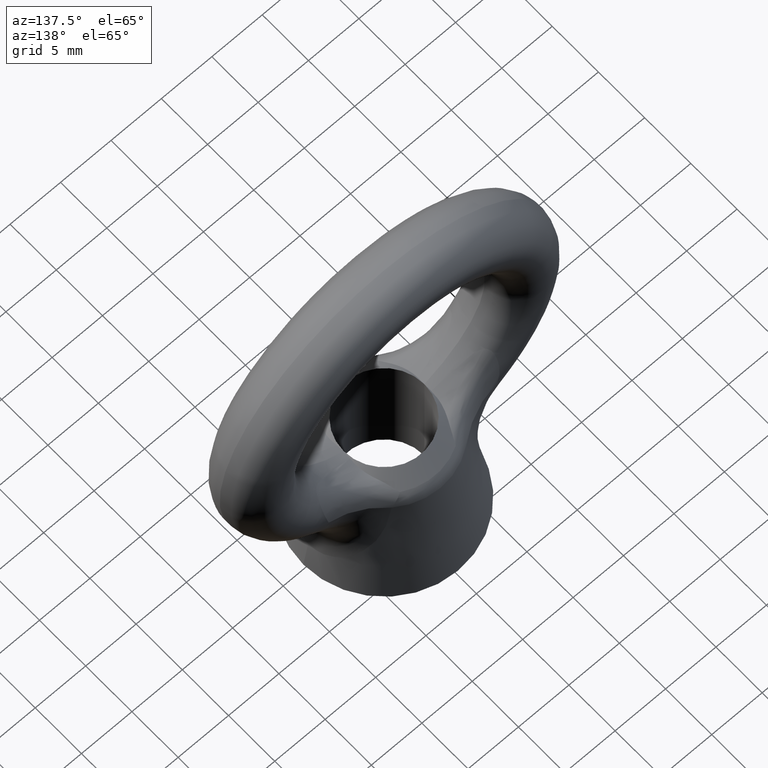
[diagram: clean part render]
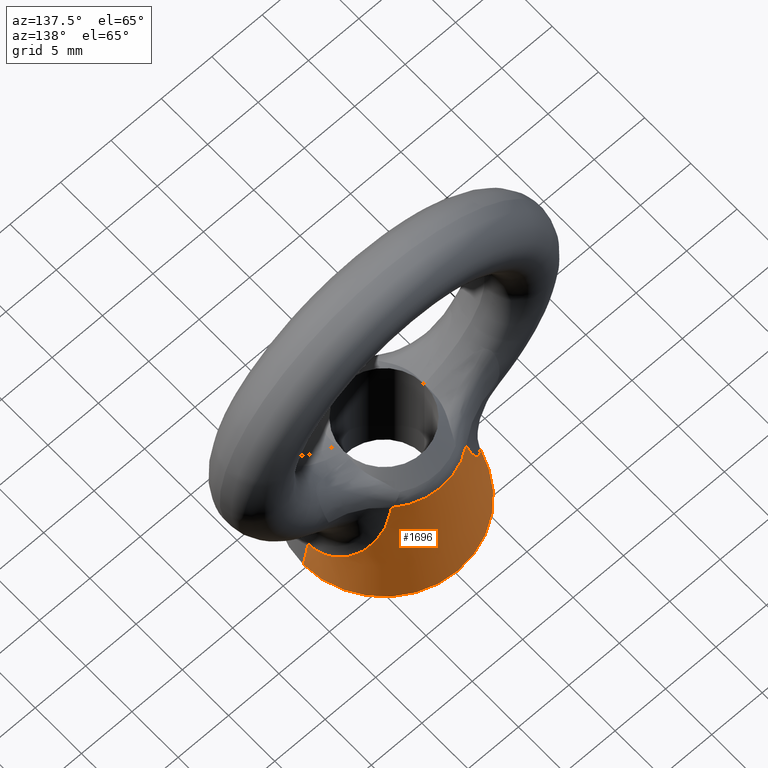
[diagram: same view with one face highlighted and labeled with its STEP entity id]
A machine part, auxiliary view. The second image highlights one B-rep face of the part: STEP entity #1696.
In plain terms, the highlighted conical surface has half-angle 9.462 deg.
Its self-contained STEP definition (entity closure, byte-faithful):
#19 = CARTESIAN_POINT ( 'NONE',  ( 7.517523914658708500, 1.590384828626300800E-015, -20.10515167080066900 ) ) ;
#20 = CARTESIAN_POINT ( 'NONE',  ( 7.517523914658711200, 0.2469037410574206900, -20.10515167080067300 ) ) ;
#21 = CARTESIAN_POINT ( 'NONE',  ( 7.501905173004672600, 0.4896739786798424100, -20.08410394743090100 ) ) ;
#22 = CARTESIAN_POINT ( 'NONE',  ( 7.441595080748321300, 0.9674330948542658700, -20.00214363067909000 ) ) ;
#23 = CARTESIAN_POINT ( 'NONE',  ( 7.396325063362585400, 1.204143901561610200, -19.94042925631535100 ) ) ;
#24 = CARTESIAN_POINT ( 'NONE',  ( 7.280948999064633200, 1.657070340402332100, -19.78094130287158600 ) ) ;
#25 = CARTESIAN_POINT ( 'NONE',  ( 7.210750658609037500, 1.874143635568106300, -19.68300334612416300 ) ) ;
#26 = CARTESIAN_POINT ( 'NONE',  ( 7.053713821390384300, 2.280314914314786700, -19.45982852783784300 ) ) ;
#27 = CARTESIAN_POINT ( 'NONE',  ( 6.966462522931490000, 2.471127193186173400, -19.33403024834572600 ) ) ;
#28 = CARTESIAN_POINT ( 'NONE',  ( 6.778014815908658600, 2.830895693655483200, -19.05601187799507600 ) ) ;
#29 = CARTESIAN_POINT ( 'NONE',  ( 6.677490107226549100, 2.998243480978918000, -18.90471114148681100 ) ) ;
#30 = CARTESIAN_POINT ( 'NONE',  ( 6.472111483679708700, 3.304312794107322000, -18.58721283963956600 ) ) ;
#31 = CARTESIAN_POINT ( 'NONE',  ( 6.366539068024015300, 3.444367053398831300, -18.41996780035326600 ) ) ;
#32 = CARTESIAN_POINT ( 'NONE',  ( 6.152178041795213700, 3.702145798932371200, -18.06978832718002100 ) ) ;
#33 = CARTESIAN_POINT ( 'NONE',  ( 6.043378843833973100, 3.819846822158458300, -17.88684184848960300 ) ) ;
#34 = CARTESIAN_POINT ( 'NONE',  ( 5.824666726059790600, 4.035226284478954800, -17.50578997964025900 ) ) ;
#35 = CARTESIAN_POINT ( 'NONE',  ( 5.714769667056120100, 4.132749051451858300, -17.30760154364253700 ) ) ;
#44 = B_SPLINE_CURVE_WITH_KNOTS ( 'NONE', 3,
 ( #53, #52, #51, #50, #49, #48, #47, #46, #45, #35, #34, #33, #32, #31, #30, #29, #28, #27, #26, #25, #24, #23, #22, #21, #20, #19 ),
 .UNSPECIFIED., .F., .F.,
 ( 4, 2, 2, 2, 2, 2, 2, 2, 2, 2, 2, 2, 4 ),
 ( 0.0000000000000000000, 0.001469218391482525600, 0.002938436782965051300, 0.004407655174447576900, 0.005876873565930102600, 0.006611482761671365000, 0.007346091957412628200, 0.008080701153153891500, 0.008815310348895153900, 0.009549919544636416300, 0.01028452874037768000, 0.01101913793611894300, 0.01175374713186020500 ),
 .UNSPECIFIED. ) ;
#45 = CARTESIAN_POINT ( 'NONE',  ( 5.393202544473429500, 4.392806641705560900, -16.70406015439562000 ) ) ;
#46 = CARTESIAN_POINT ( 'NONE',  ( 5.187159269835483100, 4.525795571213614600, -16.28544955644792600 ) ) ;
#47 = CARTESIAN_POINT ( 'NONE',  ( 4.800484633770652800, 4.730198031142041500, -15.41741907769867700 ) ) ;
#48 = CARTESIAN_POINT ( 'NONE',  ( 4.619040008471422700, 4.801499758431638100, -14.96529983965637500 ) ) ;
#49 = CARTESIAN_POINT ( 'NONE',  ( 4.294227505106910300, 4.892596597149140100, -14.04858436270725300 ) ) ;
#50 = CARTESIAN_POINT ( 'NONE',  ( 4.150223969260143700, 4.912910429053725100, -13.58306356479329200 ) ) ;
#51 = CARTESIAN_POINT ( 'NONE',  ( 3.898570865671860700, 4.915520498895909400, -12.63852145891326900 ) ) ;
#52 = CARTESIAN_POINT ( 'NONE',  ( 3.791118294241520500, 4.897672778713544300, -12.15982410730806900 ) ) ;
#53 = CARTESIAN_POINT ( 'NONE',  ( 3.700336161198615000, 4.866101749965079800, -11.67933981912971900 ) ) ;
#73 = DIRECTION ( 'NONE',  ( -1.000000000000000000, 0.0000000000000000000, 0.0000000000000000000 ) ) ;
#74 = DIRECTION ( 'NONE',  ( 0.0000000000000000000, 0.0000000000000000000, -1.000000000000000000 ) ) ;
#75 = CARTESIAN_POINT ( 'NONE',  ( 0.0000000000000000000, 0.0000000000000000000, -23.00000000000000000 ) ) ;
#76 = AXIS2_PLACEMENT_3D ( 'NONE', #75, #74, #73 ) ;
#79 = CONICAL_SURFACE ( 'NONE', #76, 8.000000000000000000, 0.1651491357972913500 ) ;
#80 = FACE_OUTER_BOUND ( 'NONE', #1697, .T. ) ;
#1696 = ADVANCED_FACE ( 'NONE', ( #80 ), #79, .T. ) ;
#1697 = EDGE_LOOP ( 'NONE', ( #1701, #1818, #1821, #1824, #1827, #1845 ) ) ;
#1701 = ORIENTED_EDGE ( 'NONE', *, *, #1702, .T. ) ;
#1702 = EDGE_CURVE ( 'NONE', #1816, #1817, #44, .T. ) ;
#1816 = VERTEX_POINT ( 'NONE', #5834 ) ;
#1817 = VERTEX_POINT ( 'NONE', #5825 ) ;
#1818 = ORIENTED_EDGE ( 'NONE', *, *, #1819, .T. ) ;
#1819 = EDGE_CURVE ( 'NONE', #1817, #1820, #5824, .T. ) ;
#1820 = VERTEX_POINT ( 'NONE', #5820 ) ;
#1821 = ORIENTED_EDGE ( 'NONE', *, *, #1822, .F. ) ;
#1822 = EDGE_CURVE ( 'NONE', #1823, #1820, #5819, .T. ) ;
#1823 = VERTEX_POINT ( 'NONE', #5814 ) ;
#1824 = ORIENTED_EDGE ( 'NONE', *, *, #1825, .F. ) ;
#1825 = EDGE_CURVE ( 'NONE', #1826, #1823, #5813, .T. ) ;
#1826 = VERTEX_POINT ( 'NONE', #5809 ) ;
#1827 = ORIENTED_EDGE ( 'NONE', *, *, #1828, .T. ) ;
#1828 = EDGE_CURVE ( 'NONE', #1826, #1844, #5801, .T. ) ;
#1844 = VERTEX_POINT ( 'NONE', #4842 ) ;
#1845 = ORIENTED_EDGE ( 'NONE', *, *, #1846, .T. ) ;
#1846 = EDGE_CURVE ( 'NONE', #1844, #1816, #4836, .T. ) ;
#4832 = DIRECTION ( 'NONE',  ( 1.000000000000000000, 0.0000000000000000000, 0.0000000000000000000 ) ) ;
#4833 = DIRECTION ( 'NONE',  ( 0.0000000000000000000, 0.0000000000000000000, -1.000000000000000000 ) ) ;
#4834 = CARTESIAN_POINT ( 'NONE',  ( 0.0000000000000000000, 0.0000000000000000000, -11.67933981912971900 ) ) ;
#4835 = AXIS2_PLACEMENT_3D ( 'NONE', #4834, #4833, #4832 ) ;
#4836 = CIRCLE ( 'NONE', #4835, 6.113217969849210400 ) ;
#4842 = CARTESIAN_POINT ( 'NONE',  ( -3.700336161198615000, 4.866101749965079800, -11.67933981912971900 ) ) ;
#5783 = CARTESIAN_POINT ( 'NONE',  ( -3.700336161198615000, 4.866101749965079800, -11.67933981912971900 ) ) ;
#5784 = CARTESIAN_POINT ( 'NONE',  ( -3.791080510761447400, 4.897659638866543700, -12.15962412997844100 ) ) ;
#5785 = CARTESIAN_POINT ( 'NONE',  ( -3.897948798332466800, 4.915433139214664800, -12.63581857763769600 ) ) ;
#5786 = CARTESIAN_POINT ( 'NONE',  ( -4.148983107610033200, 4.913016417030343400, -13.57877150178361700 ) ) ;
#5787 = CARTESIAN_POINT ( 'NONE',  ( -4.293832980109333300, 4.892688106765012500, -14.04741552049485200 ) ) ;
#5788 = CARTESIAN_POINT ( 'NONE',  ( -4.618975746002726100, 4.801536893255710800, -14.96517377195020700 ) ) ;
#5789 = CARTESIAN_POINT ( 'NONE',  ( -4.798601422195371700, 4.731125378629795500, -15.41306983158898600 ) ) ;
#5790 = CARTESIAN_POINT ( 'NONE',  ( -5.187444715281706900, 4.525712549269336200, -16.28621154208027000 ) ) ;
#5791 = CARTESIAN_POINT ( 'NONE',  ( -5.396503009544640700, 4.390439604083899100, -16.71053500868492100 ) ) ;
#5792 = CARTESIAN_POINT ( 'NONE',  ( -5.717409407806755400, 4.130460136556912700, -17.31241303120010900 ) ) ;
#5793 = CARTESIAN_POINT ( 'NONE',  ( -5.825879783987346600, 4.034098607246859200, -17.50794511143864800 ) ) ;
#5794 = CARTESIAN_POINT ( 'NONE',  ( -6.044247045159933900, 3.818924313034898000, -17.88831239793630300 ) ) ;
#5795 = CARTESIAN_POINT ( 'NONE',  ( -6.154707890606447400, 3.699359780974263300, -18.07402216976051800 ) ) ;
#5796 = CARTESIAN_POINT ( 'NONE',  ( -6.478098112501166700, 3.309688445053397700, -18.60200361946352000 ) ) ;
#5797 = CARTESIAN_POINT ( 'NONE',  ( -6.685026712302423800, 3.008295300323533500, -18.91881067202625000 ) ) ;
#5801 = B_SPLINE_CURVE_WITH_KNOTS ( 'NONE', 3,
 ( #5808, #5807, #5806, #5805, #5804, #5803, #5802, #5797, #5796, #5795, #5794, #5793, #5792, #5791, #5790, #5789, #5788, #5787, #5786, #5785, #5784, #5783 ),
 .UNSPECIFIED., .F., .F.,
 ( 4, 2, 2, 2, 2, 2, 2, 2, 2, 2, 4 ),
 ( 0.01175374713186019800, 0.01248782061828868100, 0.01322189410471716300, 0.01469004107757412700, 0.01615818805043109400, 0.01689226153685956900, 0.01762633502328804800, 0.01909448199614501000, 0.02056262896900196800, 0.02203077594185892300, 0.02349892291471588100 ),
 .UNSPECIFIED. ) ;
#5802 = CARTESIAN_POINT ( 'NONE',  ( -7.058717856527840300, 2.295126283549899300, -19.47015036336721700 ) ) ;
#5803 = CARTESIAN_POINT ( 'NONE',  ( -7.224805527430167900, 1.877313102086367400, -19.70332997826475500 ) ) ;
#5804 = CARTESIAN_POINT ( 'NONE',  ( -7.395374059738716500, 1.207955613047940500, -19.93911587342264400 ) ) ;
#5805 = CARTESIAN_POINT ( 'NONE',  ( -7.440154740274011600, 0.9764553683088973400, -20.00018151817191400 ) ) ;
#5806 = CARTESIAN_POINT ( 'NONE',  ( -7.501573110524823600, 0.4946239260969541600, -20.08365726245855500 ) ) ;
#5807 = CARTESIAN_POINT ( 'NONE',  ( -7.517523914658711200, 0.2467236879976241200, -20.10515167080067300 ) ) ;
#5808 = CARTESIAN_POINT ( 'NONE',  ( -7.517523914658708500, -1.503601632598788600E-015, -20.10515167080066900 ) ) ;
#5809 = CARTESIAN_POINT ( 'NONE',  ( -7.517523914658708500, -1.503601632598788600E-015, -20.10515167080066900 ) ) ;
#5810 = DIRECTION ( 'NONE',  ( -0.1643994394512150700, 0.0000000000000000000, -0.9863938484743941500 ) ) ;
#5811 = VECTOR ( 'NONE', #5810, 1000.000000000000200 ) ;
#5812 = CARTESIAN_POINT ( 'NONE',  ( -8.000000000000000000, 0.0000000000000000000, -23.00000000000000000 ) ) ;
#5813 = LINE ( 'NONE', #5812, #5811 ) ;
#5814 = CARTESIAN_POINT ( 'NONE',  ( -8.000000000000000000, 0.0000000000000000000, -23.00000000000000000 ) ) ;
#5815 = DIRECTION ( 'NONE',  ( -1.000000000000000000, 0.0000000000000000000, 0.0000000000000000000 ) ) ;
#5816 = DIRECTION ( 'NONE',  ( 0.0000000000000000000, 0.0000000000000000000, -1.000000000000000000 ) ) ;
#5817 = CARTESIAN_POINT ( 'NONE',  ( 0.0000000000000000000, 0.0000000000000000000, -23.00000000000000000 ) ) ;
#5818 = AXIS2_PLACEMENT_3D ( 'NONE', #5817, #5816, #5815 ) ;
#5819 = CIRCLE ( 'NONE', #5818, 8.000000000000000000 ) ;
#5820 = CARTESIAN_POINT ( 'NONE',  ( 8.000000000000000000, 9.796850830579018100E-016, -23.00000000000000000 ) ) ;
#5821 = DIRECTION ( 'NONE',  ( 0.1643994394512150700, 2.013245981167951400E-017, -0.9863938484743941500 ) ) ;
#5822 = VECTOR ( 'NONE', #5821, 1000.000000000000200 ) ;
#5823 = CARTESIAN_POINT ( 'NONE',  ( 8.000000000000000000, 9.796850830579018100E-016, -23.00000000000000000 ) ) ;
#5824 = LINE ( 'NONE', #5823, #5822 ) ;
#5825 = CARTESIAN_POINT ( 'NONE',  ( 7.517523914658708500, 1.590384828626300800E-015, -20.10515167080066900 ) ) ;
#5834 = CARTESIAN_POINT ( 'NONE',  ( 3.700336161198615000, 4.866101749965079800, -11.67933981912971900 ) ) ;